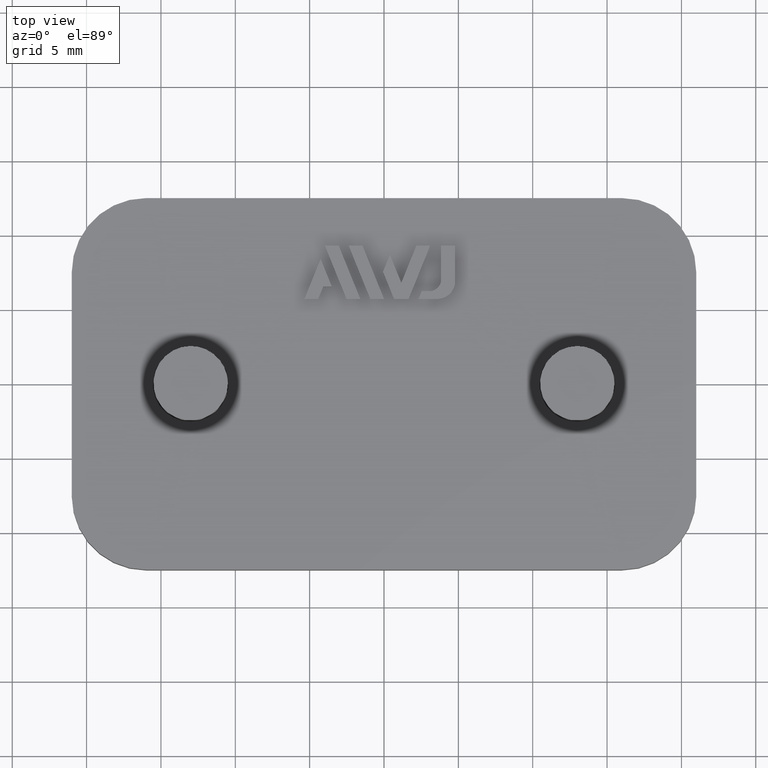
[diagram: clean part render]
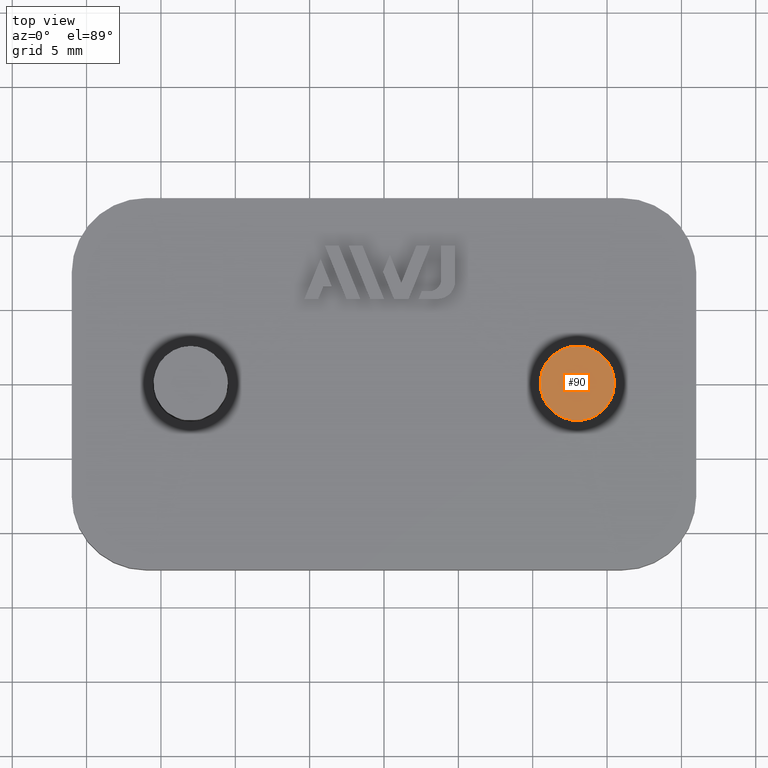
[diagram: same view with one face highlighted and labeled with its STEP entity id]
A machine part, top view. The second image highlights one B-rep face of the part: STEP entity #90.
In plain terms, the highlighted planar face has unit normal (0, -0, -1).
Its self-contained STEP definition (entity closure, byte-faithful):
#90 = ADVANCED_FACE( '', ( #178 ), #179, .F. );
#178 = FACE_OUTER_BOUND( '', #311, .T. );
#179 = PLANE( '', #312 );
#311 = EDGE_LOOP( '', ( #551 ) );
#312 = AXIS2_PLACEMENT_3D( '', #552, #553, #554 );
#551 = ORIENTED_EDGE( '', *, *, #954, .F. );
#552 = CARTESIAN_POINT( '', ( 13.0000000000000, 2.05296391865561E-015, 5.50000000000000 ) );
#553 = DIRECTION( '', ( 0.000000000000000, -6.12303176911189E-017, -1.00000000000000 ) );
#554 = DIRECTION( '', ( 1.00000000000000, 6.12303176911190E-017, -3.74915180455535E-033 ) );
#954 = EDGE_CURVE( '', #1164, #1164, #1165, .T. );
#1164 = VERTEX_POINT( '', #1471 );
#1165 = CIRCLE( '', #1472, 2.50000000000000 );
#1471 = CARTESIAN_POINT( '', ( 15.5000000000000, 2.20603971288341E-015, 5.50000000000000 ) );
#1472 = AXIS2_PLACEMENT_3D( '', #1756, #1757, #1758 );
#1756 = CARTESIAN_POINT( '', ( 13.0000000000000, 2.05296391865561E-015, 5.50000000000000 ) );
#1757 = DIRECTION( '', ( -4.37905770101506E-049, -6.12303176911189E-017, -1.00000000000000 ) );
#1758 = DIRECTION( '', ( 1.00000000000000, 6.12303176911188E-017, -3.74915180455534E-033 ) );